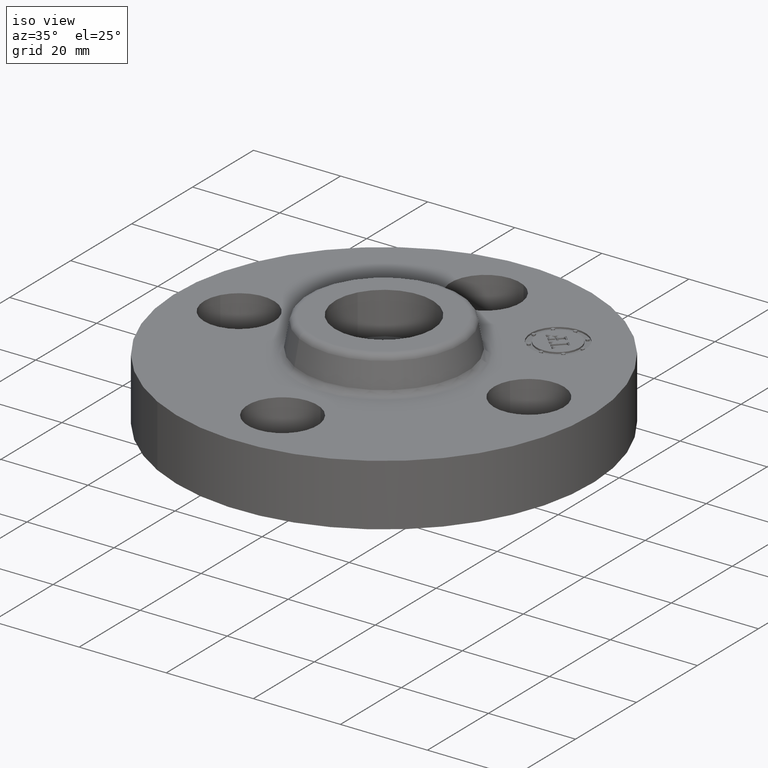
[diagram: clean part render]
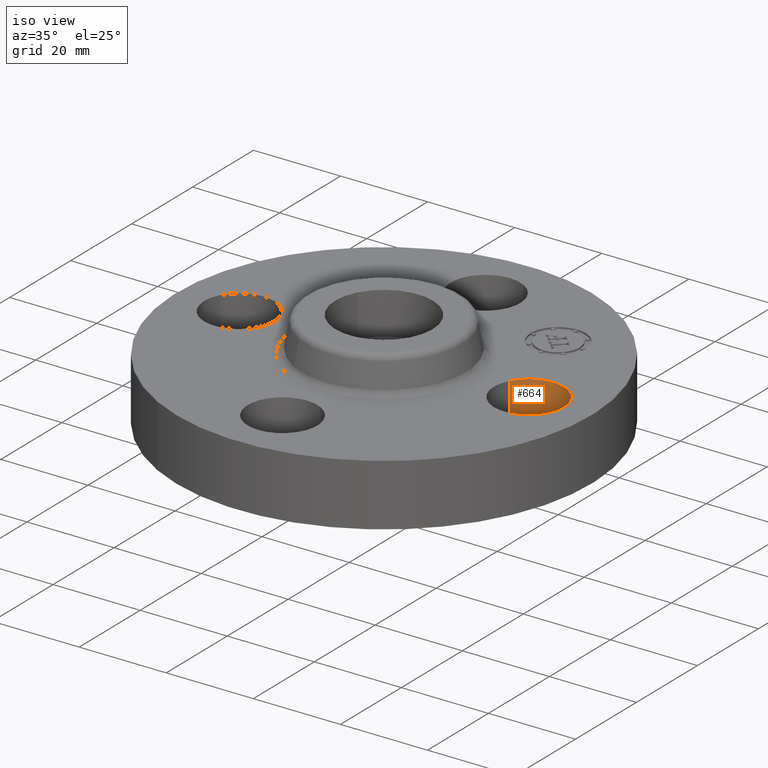
[diagram: same view with one face highlighted and labeled with its STEP entity id]
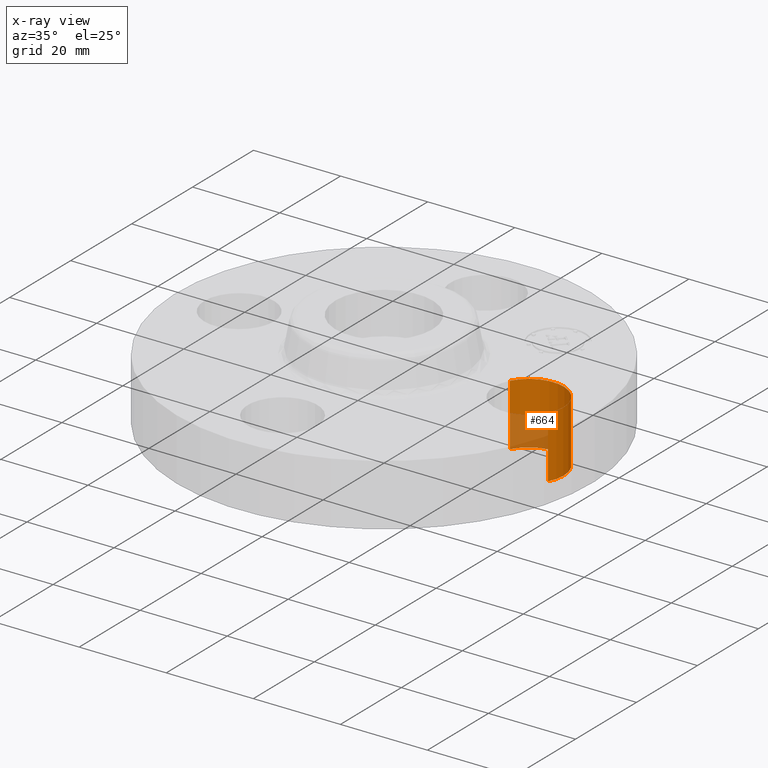
[diagram: x-ray of the same camera — body ghosted, the highlighted face saturated]
A machine part, iso view. The second image highlights one B-rep face of the part: STEP entity #664.
The next image is the same camera in x-ray: the body ghosted, the highlighted face saturated — about 27% of this face is hidden behind the body in this view.
In plain terms, the highlighted cylindrical surface (partial cylindrical patch) has radius 8.001 mm, axis along (0, -0, -1).
Its self-contained STEP definition (entity closure, byte-faithful):
#225=AXIS2_PLACEMENT_3D('Circle Axis2P3D',#223,#224,$) ;
#637=AXIS2_PLACEMENT_3D('Cylinder Axis2P3D',#634,#635,#636) ;
#655=AXIS2_PLACEMENT_3D('Circle Axis2P3D',#653,#654,$) ;
#218=CARTESIAN_POINT('Vertex',(1.586438507,-0.151019044661,6.99353086378E-017)) ;
#220=CARTESIAN_POINT('Vertex',(1.03356149301,0.151019044661,6.99353086378E-017)) ;
#223=CARTESIAN_POINT('Axis2P3D Location',(1.31000000001,-1.39870617276E-016,0.)) ;
#634=CARTESIAN_POINT('Axis2P3D Location',(1.31000000001,0.,0.556062992128)) ;
#639=CARTESIAN_POINT('Line Origine',(1.03356149301,0.151019044661,0.280000000001)) ;
#643=CARTESIAN_POINT('Vertex',(1.03356149301,0.151019044661,0.560000000002)) ;
#646=CARTESIAN_POINT('Line Origine',(1.586438507,-0.151019044661,0.280000000001)) ;
#650=CARTESIAN_POINT('Vertex',(1.586438507,-0.151019044661,0.560000000002)) ;
#653=CARTESIAN_POINT('Axis2P3D Location',(1.31000000001,0.,0.560000000002)) ;
#224=DIRECTION('Axis2P3D Direction',(0.,0.,-0.0393700787402)) ;
#635=DIRECTION('Axis2P3D Direction',(0.,-0.,-0.0393700787402)) ;
#636=DIRECTION('Axis2P3D XDirection',(0.0345504945626,-0.0188750212049,0.)) ;
#640=DIRECTION('Vector Direction',(0.,0.,-0.0393700787402)) ;
#647=DIRECTION('Vector Direction',(0.,0.,-0.0393700787402)) ;
#654=DIRECTION('Axis2P3D Direction',(0.,-0.,-0.0393700787402)) ;
#641=VECTOR('Line Direction',#640,0.0393700787402) ;
#648=VECTOR('Line Direction',#647,0.0393700787402) ;
#659=ORIENTED_EDGE('',*,*,#645,.F.) ;
#660=ORIENTED_EDGE('',*,*,#227,.T.) ;
#661=ORIENTED_EDGE('',*,*,#652,.T.) ;
#662=ORIENTED_EDGE('',*,*,#657,.F.) ;
#664=ADVANCED_FACE('PartBody',(#663),#638,.F.) ;
#226=CIRCLE('generated circle',#225,0.315000000001) ;
#656=CIRCLE('generated circle',#655,0.315000000001) ;
#638=CYLINDRICAL_SURFACE('generated cylinder',#637,0.315000000001) ;
#227=EDGE_CURVE('',#221,#219,#226,.T.) ;
#645=EDGE_CURVE('',#221,#644,#642,.F.) ;
#652=EDGE_CURVE('',#219,#651,#649,.F.) ;
#657=EDGE_CURVE('',#644,#651,#656,.T.) ;
#658=EDGE_LOOP('',(#659,#660,#661,#662)) ;
#663=FACE_OUTER_BOUND('',#658,.T.) ;
#642=LINE('Line',#639,#641) ;
#649=LINE('Line',#646,#648) ;
#219=VERTEX_POINT('',#218) ;
#221=VERTEX_POINT('',#220) ;
#644=VERTEX_POINT('',#643) ;
#651=VERTEX_POINT('',#650) ;